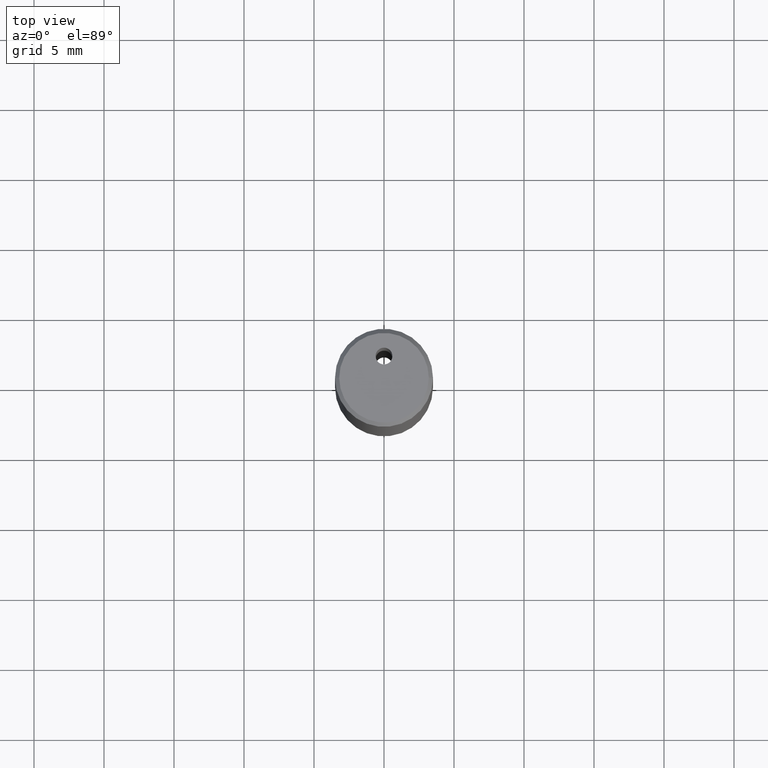
[diagram: clean part render]
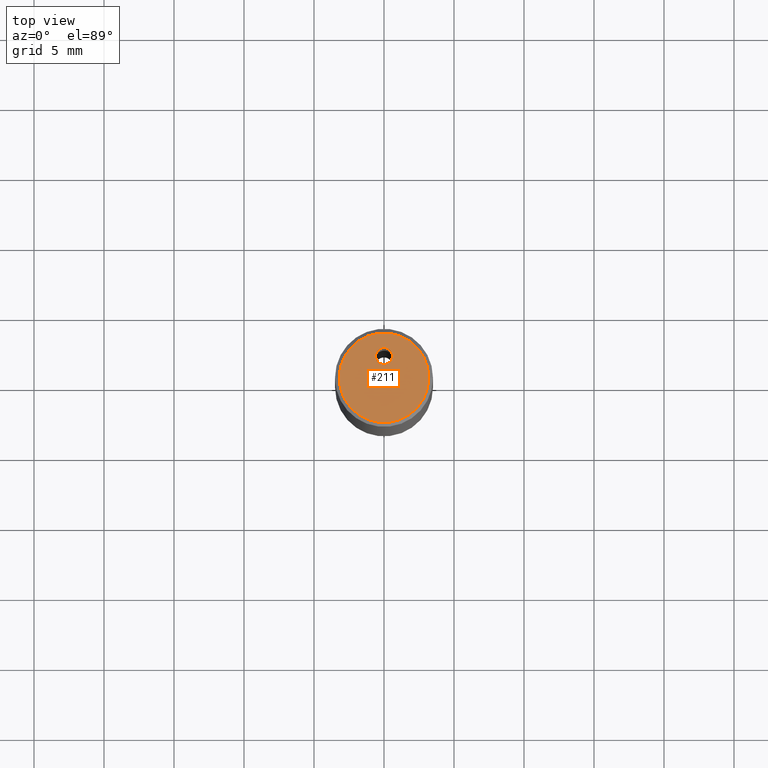
[diagram: same view with one face highlighted and labeled with its STEP entity id]
A machine part, top view. The second image highlights one B-rep face of the part: STEP entity #211.
In plain terms, the highlighted planar face has unit normal (0, 0, -1).
Its self-contained STEP definition (entity closure, byte-faithful):
#151=EDGE_CURVE('NONE',#229,#261,#421,.F.);
#183=VERTEX_POINT('NONE',#457);
#211=ADVANCED_FACE('NONE',(#490,#491),#492,.F.);
#229=VERTEX_POINT('NONE',#511);
#261=VERTEX_POINT('NONE',#547);
#269=EDGE_CURVE('NONE',#261,#229,#555,.T.);
#277=EDGE_CURVE('NONE',#341,#183,#565,.F.);
#317=EDGE_CURVE('NONE',#183,#341,#607,.T.);
#341=VERTEX_POINT('NONE',#633);
#421=CIRCLE('',#709,0.6);
#457=CARTESIAN_POINT('',(3.19999999999999,-1.12862261311859E-014,0.0));
#490=FACE_OUTER_BOUND('',#828,.T.);
#491=FACE_BOUND('',#829,.T.);
#492=PLANE('',#830);
#511=CARTESIAN_POINT('',(0.600000000000006,1.55,0.0));
#547=CARTESIAN_POINT('',(-0.599999999999995,1.55,0.0));
#555=CIRCLE('',#1058,0.6);
#565=CIRCLE('',#1069,3.19999999999999);
#607=CIRCLE('',#1165,3.19999999999999);
#633=CARTESIAN_POINT('',(-3.19999999999999,1.117274675555E-014,0.0));
#709=AXIS2_PLACEMENT_3D('',#1350,#1351,#1352);
#828=EDGE_LOOP('',(#1453,#1454));
#829=EDGE_LOOP('',(#1455,#1456));
#830=AXIS2_PLACEMENT_3D('',#1457,#1458,#1459);
#1058=AXIS2_PLACEMENT_3D('',#1512,#1513,#1514);
#1069=AXIS2_PLACEMENT_3D('',#1536,#1537,#1538);
#1165=AXIS2_PLACEMENT_3D('',#1573,#1574,#1575);
#1350=CARTESIAN_POINT('',(5.41179920971954E-015,1.55,0.0));
#1351=DIRECTION('',(0.0,0.0,-1.0));
#1352=DIRECTION('',(1.0,-3.61400724161835E-015,0.0));
#1453=ORIENTED_EDGE('',*,*,#277,.T.);
#1454=ORIENTED_EDGE('',*,*,#317,.T.);
#1455=ORIENTED_EDGE('',*,*,#151,.F.);
#1456=ORIENTED_EDGE('',*,*,#269,.F.);
#1457=CARTESIAN_POINT('',(0.0,0.0,0.0));
#1458=DIRECTION('',(0.0,0.0,-1.0));
#1459=DIRECTION('',(-1.0,0.0,0.0));
#1512=CARTESIAN_POINT('',(5.41179920971954E-015,1.55,0.0));
#1513=DIRECTION('',(-0.0,0.0,1.0));
#1514=DIRECTION('',(1.0,-3.61400724161835E-015,0.0));
#1536=CARTESIAN_POINT('',(0.0,0.0,0.0));
#1537=DIRECTION('',(0.0,0.0,-1.0));
#1538=DIRECTION('',(-1.0,3.49148336110938E-015,0.0));
#1573=CARTESIAN_POINT('',(0.0,0.0,0.0));
#1574=DIRECTION('',(0.0,0.0,1.0));
#1575=DIRECTION('',(-1.0,3.49148336110938E-015,0.0));